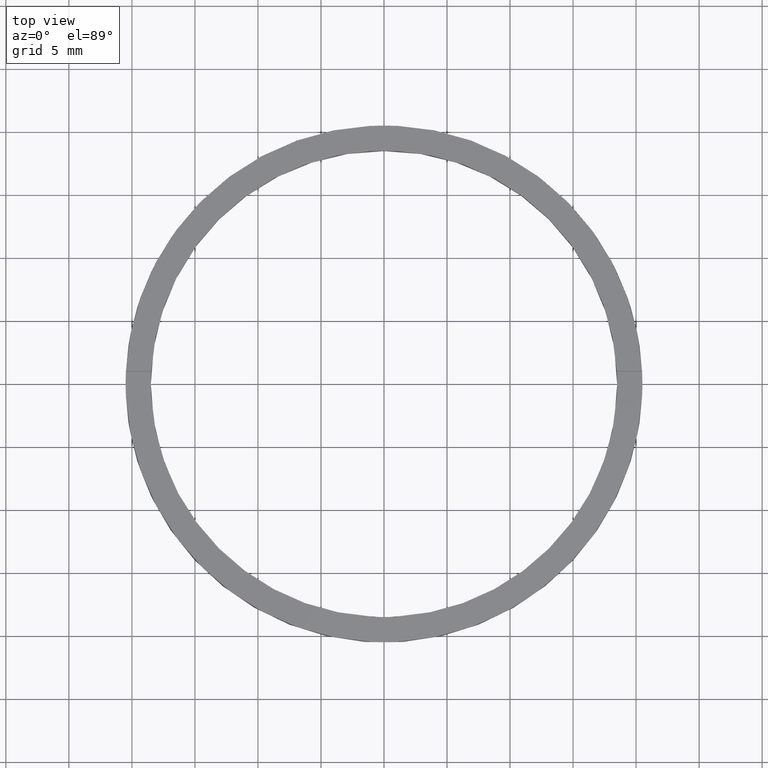
[diagram: clean part render]
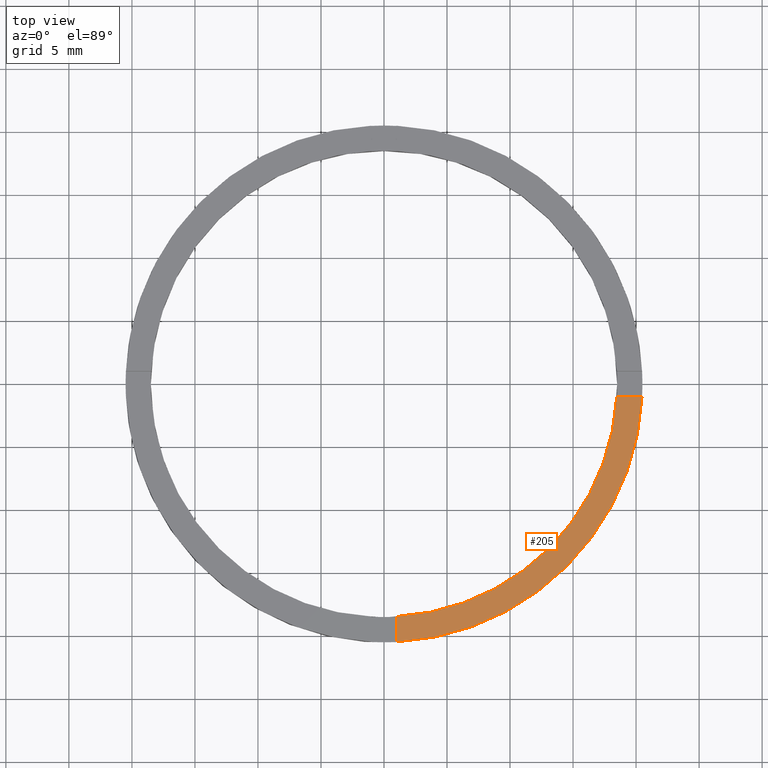
[diagram: same view with one face highlighted and labeled with its STEP entity id]
A machine part, top view. The second image highlights one B-rep face of the part: STEP entity #205.
In plain terms, the highlighted planar face has unit normal (0, 0, 1).
Its self-contained STEP definition (entity closure, byte-faithful):
#7 = CARTESIAN_POINT ( 'NONE',  ( 0.9999999999998371303, -10.50000000000018119, 2.500000000000000000 ) ) ;
#45 = PLANE ( 'NONE',  #783 ) ;
#68 = CARTESIAN_POINT ( 'NONE',  ( 0.9999999999998377964, -18.47295320191117085, 2.500000000000000000 ) ) ;
#95 = CARTESIAN_POINT ( 'NONE',  ( 18.47295320191115309, -1.000000000000158318, 2.500000000000000000 ) ) ;
#104 = DIRECTION ( 'NONE',  ( 1.000000000000000000, 0.000000000000000000, -0.000000000000000000 ) ) ;
#109 = DIRECTION ( 'NONE',  ( -1.301042606982605074E-16, 1.000000000000000000, -0.000000000000000000 ) ) ;
#120 = AXIS2_PLACEMENT_3D ( 'NONE', #599, #462, #604 ) ;
#140 = CIRCLE ( 'NONE', #120, 20.50000000000000000 ) ;
#156 = EDGE_CURVE ( 'NONE', #450, #648, #258, .T. ) ;
#181 = ORIENTED_EDGE ( 'NONE', *, *, #779, .F. ) ;
#190 = LINE ( 'NONE', #484, #598 ) ;
#201 = CARTESIAN_POINT ( 'NONE',  ( 0.9999999999998380185, -20.47559522944327526, 2.500000000000000000 ) ) ;
#205 = ADVANCED_FACE ( 'NONE', ( #516 ), #45, .T. ) ;
#224 = EDGE_LOOP ( 'NONE', ( #181, #458, #250, #463 ) ) ;
#250 = ORIENTED_EDGE ( 'NONE', *, *, #156, .F. ) ;
#258 = LINE ( 'NONE', #7, #762 ) ;
#277 = AXIS2_PLACEMENT_3D ( 'NONE', #542, #282, #570 ) ;
#282 = DIRECTION ( 'NONE',  ( 0.000000000000000000, 0.000000000000000000, 1.000000000000000000 ) ) ;
#319 = EDGE_CURVE ( 'NONE', #648, #507, #771, .T. ) ;
#339 = DIRECTION ( 'NONE',  ( 1.000000000000000000, 4.336808689942017120E-17, 0.000000000000000000 ) ) ;
#403 = VERTEX_POINT ( 'NONE', #616 ) ;
#450 = VERTEX_POINT ( 'NONE', #201 ) ;
#458 = ORIENTED_EDGE ( 'NONE', *, *, #319, .F. ) ;
#462 = DIRECTION ( 'NONE',  ( 0.000000000000000000, 0.000000000000000000, 1.000000000000000000 ) ) ;
#463 = ORIENTED_EDGE ( 'NONE', *, *, #481, .T. ) ;
#481 = EDGE_CURVE ( 'NONE', #450, #403, #140, .T. ) ;
#484 = CARTESIAN_POINT ( 'NONE',  ( 10.49999999999999467, -1.000000000000158762, 2.500000000000000000 ) ) ;
#502 = CARTESIAN_POINT ( 'NONE',  ( 0.000000000000000000, 0.000000000000000000, 2.500000000000000000 ) ) ;
#507 = VERTEX_POINT ( 'NONE', #95 ) ;
#516 = FACE_OUTER_BOUND ( 'NONE', #224, .T. ) ;
#542 = CARTESIAN_POINT ( 'NONE',  ( 0.000000000000000000, 0.000000000000000000, 2.500000000000000000 ) ) ;
#570 = DIRECTION ( 'NONE',  ( 1.000000000000000000, 0.000000000000000000, 0.000000000000000000 ) ) ;
#598 = VECTOR ( 'NONE', #339, 1000.000000000000000 ) ;
#599 = CARTESIAN_POINT ( 'NONE',  ( 0.000000000000000000, 0.000000000000000000, 2.500000000000000000 ) ) ;
#604 = DIRECTION ( 'NONE',  ( 1.000000000000000000, 0.000000000000000000, 0.000000000000000000 ) ) ;
#616 = CARTESIAN_POINT ( 'NONE',  ( 20.47559522944326460, -1.000000000000158318, 2.500000000000000000 ) ) ;
#648 = VERTEX_POINT ( 'NONE', #68 ) ;
#736 = DIRECTION ( 'NONE',  ( 0.000000000000000000, 0.000000000000000000, 1.000000000000000000 ) ) ;
#762 = VECTOR ( 'NONE', #109, 1000.000000000000000 ) ;
#771 = CIRCLE ( 'NONE', #277, 18.50000000000000000 ) ;
#779 = EDGE_CURVE ( 'NONE', #507, #403, #190, .T. ) ;
#783 = AXIS2_PLACEMENT_3D ( 'NONE', #502, #736, #104 ) ;